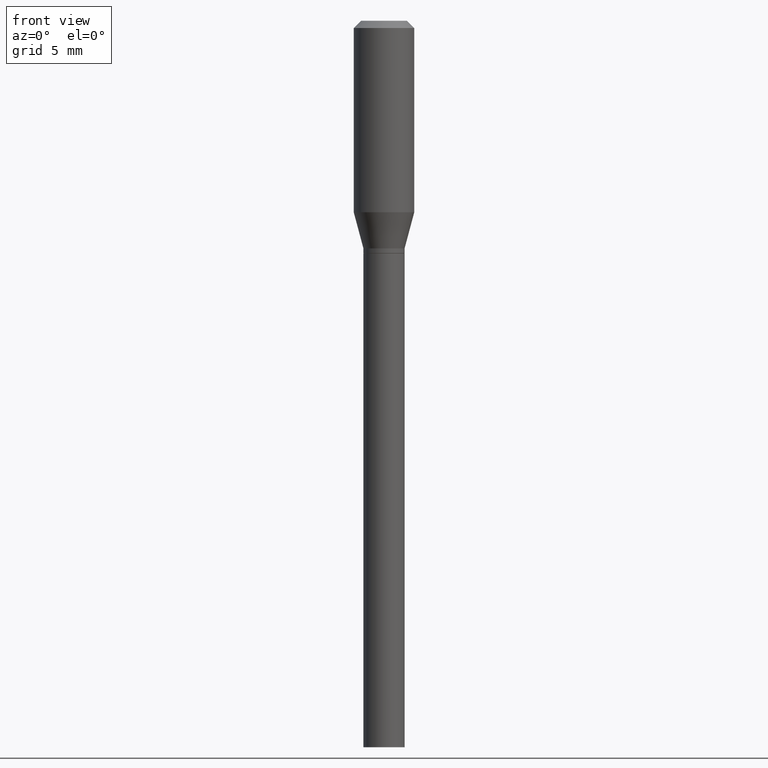
[diagram: clean part render]
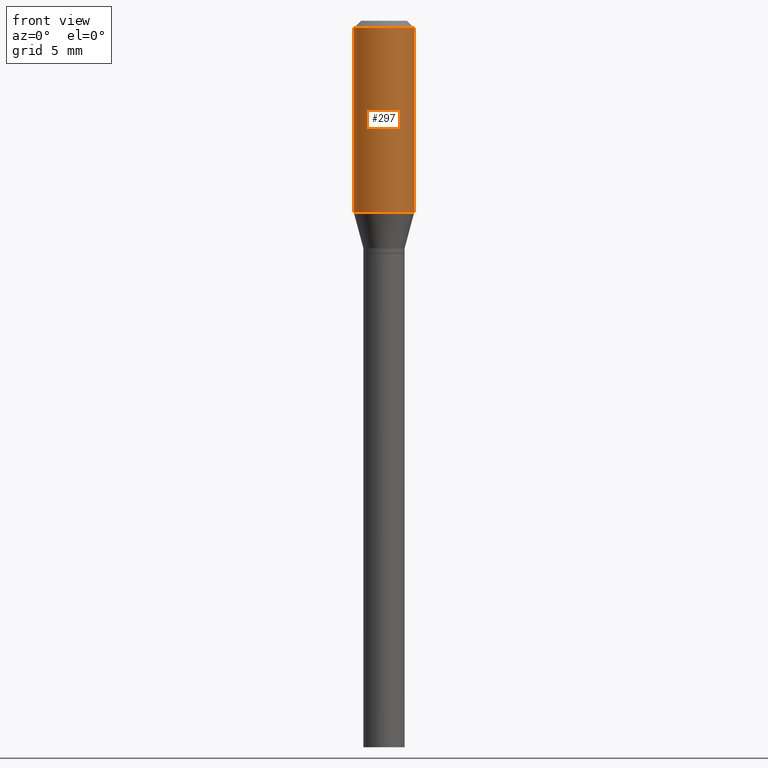
[diagram: same view with one face highlighted and labeled with its STEP entity id]
A machine part, front view. The second image highlights one B-rep face of the part: STEP entity #297.
In plain terms, the highlighted cylindrical surface (edge-blend (fillet) strip) has radius 1.5875 mm, axis along (-0, 0, 1).
Its self-contained STEP definition (entity closure, byte-faithful):
#4 = CIRCLE ( 'NONE', #32, 0.06250000000000000000 ) ;
#5 = DIRECTION ( 'NONE',  ( -2.445468806185136597E-29, 3.491481338843145583E-15, 1.000000000000000000 ) ) ;
#32 = AXIS2_PLACEMENT_3D ( 'NONE', #444, #353, #175 ) ;
#45 = VECTOR ( 'NONE', #198, 39.37007874015748143 ) ;
#62 = VERTEX_POINT ( 'NONE', #258 ) ;
#78 = ORIENTED_EDGE ( 'NONE', *, *, #246, .T. ) ;
#86 = EDGE_CURVE ( 'NONE', #316, #260, #236, .T. ) ;
#89 = CARTESIAN_POINT ( 'NONE',  ( 9.668380622468593325E-30, -1.380388514251453836E-15, -0.3953589838486224473 ) ) ;
#93 = LINE ( 'NONE', #235, #408 ) ;
#110 = AXIS2_PLACEMENT_3D ( 'NONE', #434, #257, #192 ) ;
#158 = EDGE_LOOP ( 'NONE', ( #345, #320, #78, #223 ) ) ;
#175 = DIRECTION ( 'NONE',  ( 1.000000000000000000, -6.982962677686266711E-15, 0.000000000000000000 ) ) ;
#192 = DIRECTION ( 'NONE',  ( 1.000000000000000000, -6.982962677686266711E-15, 4.876176775795935793E-29 ) ) ;
#198 = DIRECTION ( 'NONE',  ( -2.445468806185136877E-29, 3.491481338843145188E-15, 1.000000000000000000 ) ) ;
#201 = AXIS2_PLACEMENT_3D ( 'NONE', #89, #5, #403 ) ;
#223 = ORIENTED_EDGE ( 'NONE', *, *, #273, .F. ) ;
#235 = CARTESIAN_POINT ( 'NONE',  ( 0.06250000000000000000, -4.364351673553916694E-16, 3.047610484872459871E-30 ) ) ;
#236 = CIRCLE ( 'NONE', #201, 0.06250000000000000000 ) ;
#240 = CARTESIAN_POINT ( 'NONE',  ( -0.06250000000000000000, 4.440892098500626162E-16, -3.074334431409316114E-30 ) ) ;
#246 = EDGE_CURVE ( 'NONE', #260, #62, #93, .T. ) ;
#257 = DIRECTION ( 'NONE',  ( -2.445468806185136597E-29, 3.491481338843145583E-15, 1.000000000000000000 ) ) ;
#258 = CARTESIAN_POINT ( 'NONE',  ( 0.06250000000000000000, -4.888073874380388472E-16, -0.01499999999999999944 ) ) ;
#260 = VERTEX_POINT ( 'NONE', #382 ) ;
#273 = EDGE_CURVE ( 'NONE', #462, #62, #4, .T. ) ;
#281 = CARTESIAN_POINT ( 'NONE',  ( -0.06250000000000000000, -2.722911573169879398E-16, -0.01499999999999999944 ) ) ;
#297 = ADVANCED_FACE ( 'NONE', ( #374 ), #334, .T. ) ;
#299 = CARTESIAN_POINT ( 'NONE',  ( -0.06250000000000000000, -9.362993044013910222E-16, -0.3953589838486224473 ) ) ;
#316 = VERTEX_POINT ( 'NONE', #299 ) ;
#320 = ORIENTED_EDGE ( 'NONE', *, *, #86, .T. ) ;
#334 = CYLINDRICAL_SURFACE ( 'NONE', #110, 0.06250000000000000000 ) ;
#345 = ORIENTED_EDGE ( 'NONE', *, *, #430, .F. ) ;
#346 = DIRECTION ( 'NONE',  ( -2.445468806185136877E-29, 3.491481338843145188E-15, 1.000000000000000000 ) ) ;
#353 = DIRECTION ( 'NONE',  ( -2.445468806185136597E-29, 3.491481338843145583E-15, 1.000000000000000000 ) ) ;
#374 = FACE_OUTER_BOUND ( 'NONE', #158, .T. ) ;
#382 = CARTESIAN_POINT ( 'NONE',  ( 0.06250000000000000000, -1.816823681606845702E-15, -0.3953589838486224473 ) ) ;
#403 = DIRECTION ( 'NONE',  ( 1.000000000000000000, -6.982962677686266711E-15, 0.000000000000000000 ) ) ;
#408 = VECTOR ( 'NONE', #346, 39.37007874015748143 ) ;
#421 = LINE ( 'NONE', #240, #45 ) ;
#430 = EDGE_CURVE ( 'NONE', #316, #462, #421, .T. ) ;
#434 = CARTESIAN_POINT ( 'NONE',  ( 0.000000000000000000, 0.000000000000000000, 0.000000000000000000 ) ) ;
#444 = CARTESIAN_POINT ( 'NONE',  ( 3.668203209277705088E-31, -5.237222008264718399E-17, -0.01499999999999999944 ) ) ;
#462 = VERTEX_POINT ( 'NONE', #281 ) ;